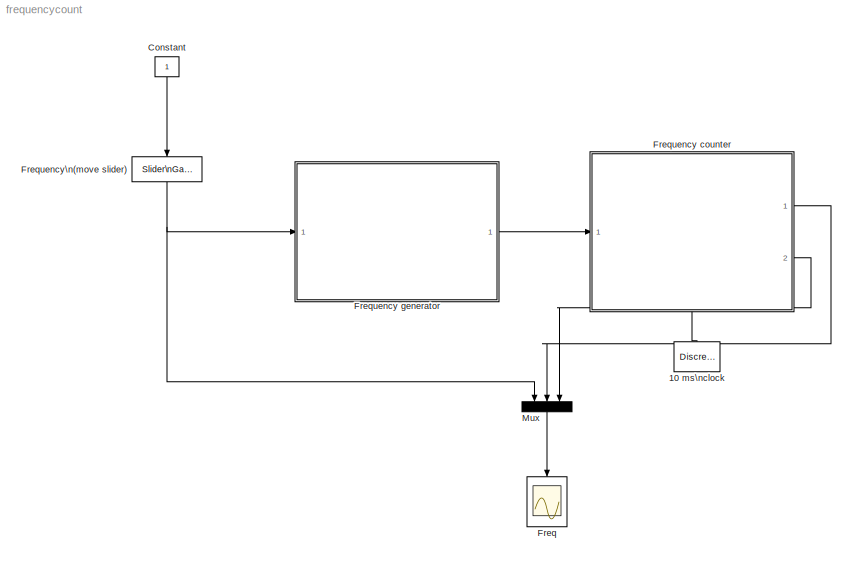
MODEL frequencycount
KIND model
BLOCK [DiscretePulseGenerator] 10 ms\nclock
  NameLocation = left
  Period = 1e-3
  Ports = [0, 1]
  PulseType = Time based
  PulseWidth = 50
  SID = 1
BLOCK [Constant] Constant
  NameLocation = left
  SID = 2
BLOCK [Scope] Freq
  Floating = off
  NameLocation = left
  NumInputPorts = 1
  Ports = [1]
  SID = 3
  ScopeSpecificationString = Simulink.scopes.TimeScopeBlockCfg('CurrentConfiguration', extmgr.ConfigurationSet(extmgr.Configuration('Core','General UI',true),extmgr.Configuration('Core','Source UI',true),extmgr.Configuration('Sources','WiredSimulink',true,'DataLoggingVariableName','ScopeData1','DataLoggingSaveFormat','StructureWithTime','DataLoggingDecimation','1','DataLoggingDecimateData',true),extmgr.Configuration('Visuals'...<+2005ch>
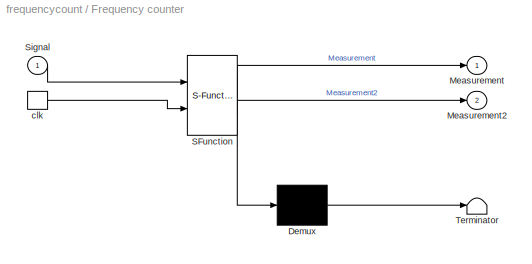
BLOCK [SubSystem] Frequency counter
  ErrorFcn = Stateflow.Translate.translate
  NameLocation = top
  PermitHierarchicalResolution = ExplicitOnly
  Ports = [1, 2, 0, 1]
  RequestExecContextInheritance = off
  SFBlockType = Chart
  SID = 5
  TreatAsAtomicUnit = on
BLOCK [Demux] Frequency counter/ Demux 
  Outputs = 1
  Ports = [1, 1]
  SID = 5::12
BLOCK [S-Function] Frequency counter/ SFunction 
  EnableBusSupport = on
  FunctionName = sf_sfun
  PortCounts = [2 3]
  Ports = [2, 3]
  SFcnIsStateOwnerBlock = off
  SFunctionDeploymentMode = off
  SID = 5::11
  Tag = Stateflow S-Function 1
BLOCK [Terminator] Frequency counter/ Terminator 
  SID = 5::13
BLOCK [Outport] Frequency counter/Measurement
  SID = 5::6
BLOCK [Outport] Frequency counter/Measurement2
  Port = 2
  SID = 5::17
BLOCK [Inport] Frequency counter/Signal
  SID = 5::15
BLOCK [TriggerPort] Frequency counter/clk
  Ports = [0, 1]
  SID = 5::2
  ShowOutputPort = on
  VariantControl = (inherit)
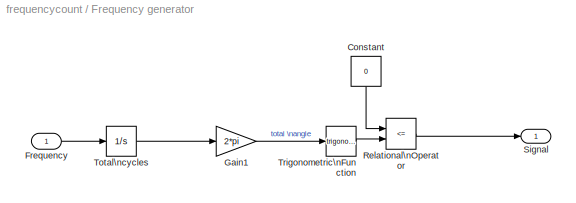
BLOCK [SubSystem] Frequency generator
  NameLocation = top
  Ports = [1, 1]
  RequestExecContextInheritance = off
  SID = 6
BLOCK [Constant] Frequency generator/Constant
  NameLocation = left
  SID = 8
  Value = 0
BLOCK [Inport] Frequency generator/Frequency
  SID = 7
BLOCK [Gain] Frequency generator/Gain1
  Gain = 2*pi
  NameLocation = top
  OutDataTypeStr = Inherit: Same as input
  ParamDataTypeStr = Inherit: Same as input
  SID = 9
  SaturateOnIntegerOverflow = on
BLOCK [RelationalOperator] Frequency generator/Relational\nOperator
  InputSameDT = off
  Operator = <=
  OutDataTypeStr = boolean
  Ports = [2, 1]
  SID = 10
BLOCK [Outport] Frequency generator/Signal
  SID = 13
BLOCK [Integrator] Frequency generator/Total\ncycles
  Ports = [1, 1]
  SID = 11
BLOCK [Trigonometry] Frequency generator/Trigonometric\nFunction
  Ports = [1, 1]
  SID = 12
BLOCK [Reference] Frequency\n(move slider)  REF=simulink/Math\nOperations/Slider\nGain
  NameLocation = right
  Ports = [1, 1]
  RTWMemSecDataConstants = Inherit from model
  RTWMemSecDataInternal = Inherit from model
  RTWMemSecDataParameters = Inherit from model
  RTWMemSecFuncExecute = Inherit from model
  RTWMemSecFuncInitTerm = Inherit from model
  SID = 4
  SourceBlock = simulink/Math\nOperations/Slider\nGain
  SourceProductBaseCode = SL
  SourceType = Slider Gain
  gain = 25
  high = 50
  low = 1
BLOCK [Mux] Mux
  DisplayOption = bar
  Inputs = 3
  NameLocation = left
  Ports = [3, 1]
  SID = 14
LINE 10 ms\nclock:1 -> Frequency counter:trigger
LINE Constant:1 -> Frequency\n(move slider):1
LINE Frequency counter/ Demux :1 -> Frequency counter/ Terminator :1
LINE Frequency counter/ SFunction :1 -> Frequency counter/ Demux :1
LINE Frequency counter/ SFunction :2 -> Frequency counter/Measurement:1
LINE Frequency counter/ SFunction :3 -> Frequency counter/Measurement2:1
LINE Frequency counter/Signal:1 -> Frequency counter/ SFunction :1
LINE Frequency counter/clk:1 -> Frequency counter/ SFunction :2
LINE Frequency counter:1 -> Mux:2
LINE Frequency counter:2 -> Mux:3
LINE Frequency generator/Constant:1 -> Frequency generator/Relational\nOperator:1
LINE Frequency generator/Frequency:1 -> Frequency generator/Total\ncycles:1
LINE Frequency generator/Gain1:1 -> Frequency generator/Trigonometric\nFunction:1
LINE Frequency generator/Relational\nOperator:1 -> Frequency generator/Signal:1
LINE Frequency generator/Total\ncycles:1 -> Frequency generator/Gain1:1
LINE Frequency generator/Trigonometric\nFunction:1 -> Frequency generator/Relational\nOperator:2
LINE Frequency generator:1 -> Frequency counter:1
NET Frequency\n(move slider):1 -> Frequency generator:1, Mux:1
LINE Mux:1 -> Freq:1
note: NET lines group one-source signal fan-out (src -> all destinations, sorted); 1:1 wires keep LINE
CHART Frequency counter states=10 transitions=10
  STATE_LABEL 'FrequencyCounter'
  STATE_LABEL 'FrequencyCounterMethode'
  STATE_LABEL 'Counter'
  STATE_LABEL 'Clock'
  STATE_LABEL 'Clock\\n'
  STATE_LABEL 'Counter'
  STATE_LABEL 'FrequencyTimerMethode'
  STATE_LABEL 'FirstLow'
  STATE_LABEL 'FirstHigh'
  STATE_LABEL 'ClockStarter'
